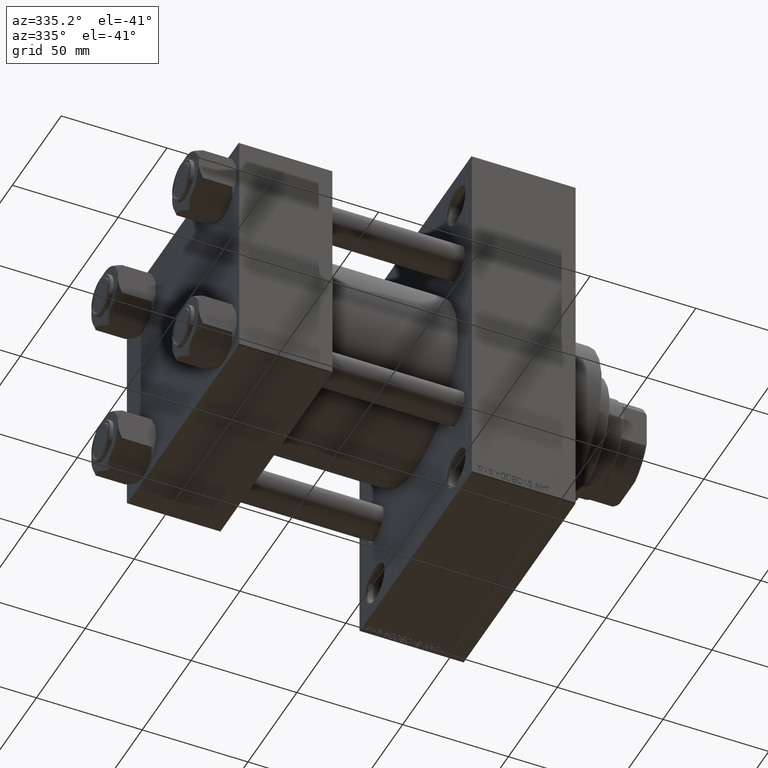
[diagram: clean part render]
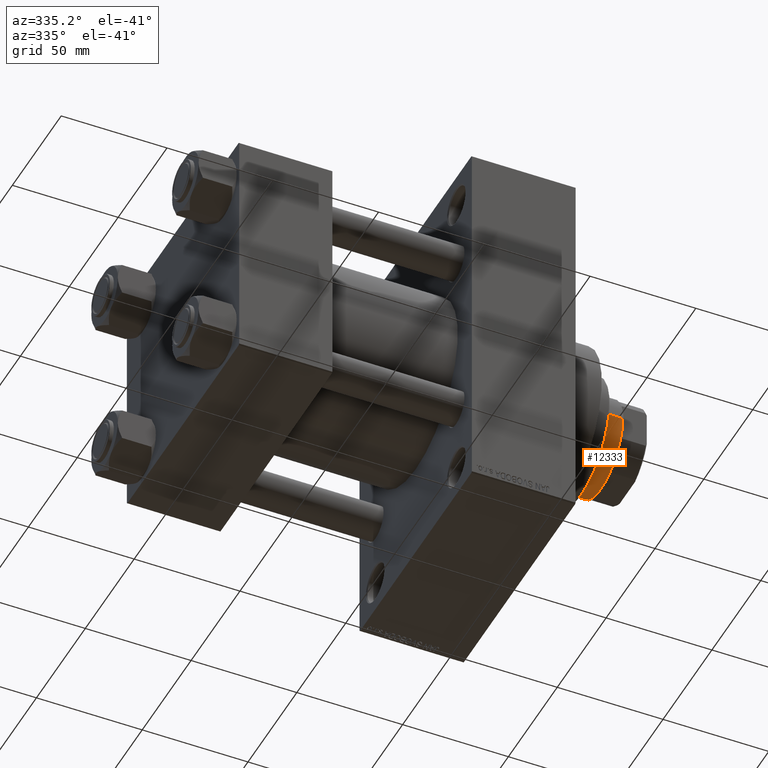
[diagram: same view with one face highlighted and labeled with its STEP entity id]
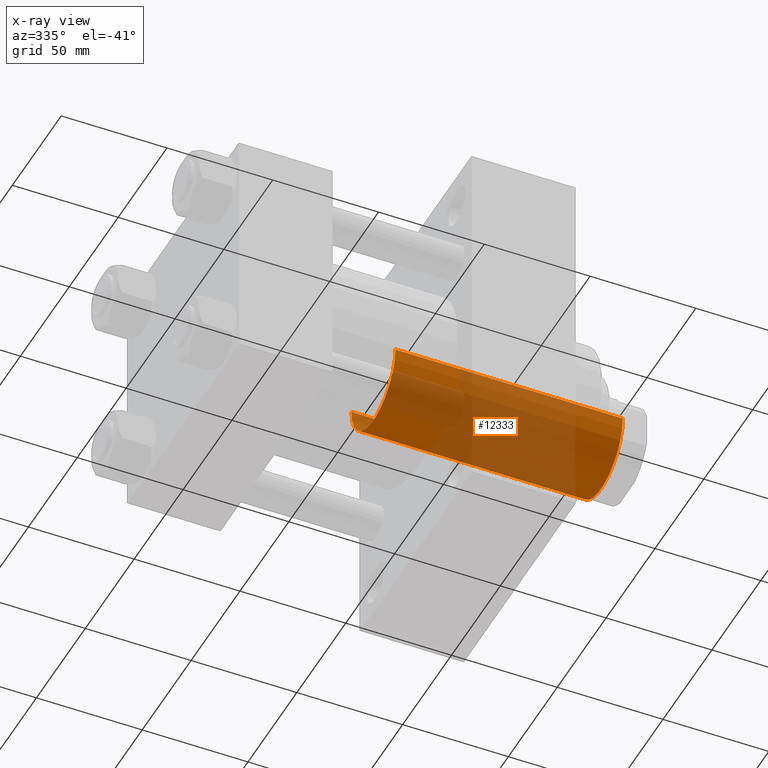
[diagram: x-ray of the same camera — body ghosted, the highlighted face saturated]
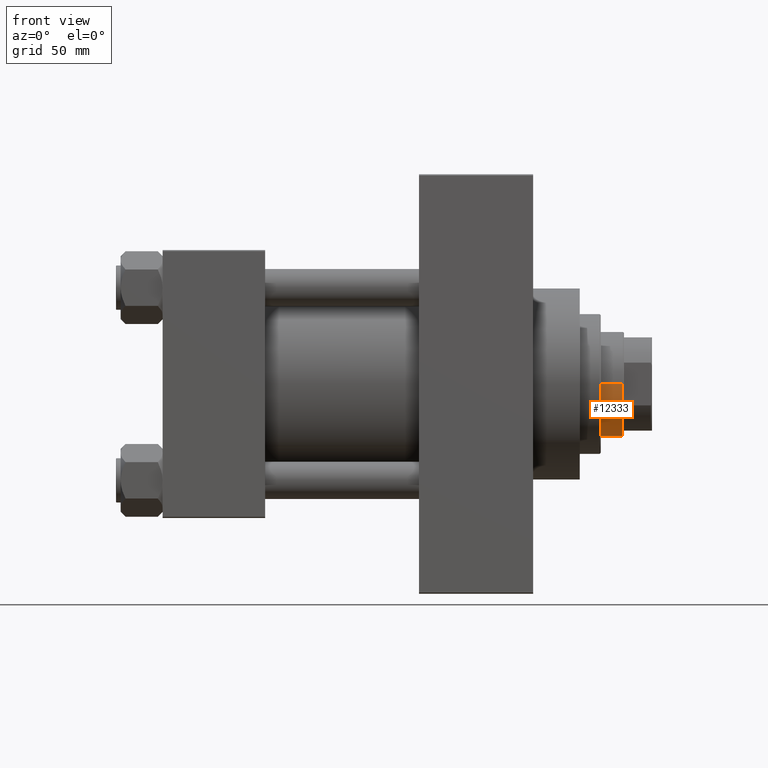
[diagram: same view with one face highlighted and labeled with its STEP entity id]
A machine part, auxiliary view. The second image highlights one B-rep face of the part: STEP entity #12333.
The next image is the same camera in x-ray: the body ghosted, the highlighted face saturated — about 68% of this face is hidden behind the body in this view.
A second angle (front view) of the same face is appended — the face is thin or edge-on in the first view.
In plain terms, the highlighted cylindrical surface (partial cylindrical patch) has radius 22.5 mm, axis along (-1, 0, 0).
Its self-contained STEP definition (entity closure, byte-faithful):
#849 = DIRECTION ( 'NONE',  ( -0.000000000000000000, -0.000000000000000000, -1.000000000000000000 ) ) ;
#1303 = ORIENTED_EDGE ( 'NONE', *, *, #11924, .F. ) ;
#1379 = EDGE_CURVE ( 'NONE', #17926, #16712, #19601, .T. ) ;
#3511 = LINE ( 'NONE', #44254, #44139 ) ;
#11444 = ORIENTED_EDGE ( 'NONE', *, *, #1379, .T. ) ;
#11904 = CYLINDRICAL_SURFACE ( 'NONE', #14419, 22.50000000000000355 ) ;
#11924 = EDGE_CURVE ( 'NONE', #41215, #16712, #18357, .T. ) ;
#11998 = DIRECTION ( 'NONE',  ( 1.000000000000000000, 0.000000000000000000, 0.000000000000000000 ) ) ;
#12142 = DIRECTION ( 'NONE',  ( -1.000000000000000000, 0.000000000000000000, 0.000000000000000000 ) ) ;
#12333 = ADVANCED_FACE ( 'NONE', ( #23008 ), #11904, .T. ) ;
#12432 = CIRCLE ( 'NONE', #46331, 22.50000000000000355 ) ;
#14419 = AXIS2_PLACEMENT_3D ( 'NONE', #33865, #26621, #12142 ) ;
#14491 = DIRECTION ( 'NONE',  ( 0.000000000000000000, 0.000000000000000000, -1.000000000000000000 ) ) ;
#14729 = DIRECTION ( 'NONE',  ( -0.000000000000000000, -0.000000000000000000, -1.000000000000000000 ) ) ;
#16313 = CARTESIAN_POINT ( 'NONE',  ( 0.000000000000000000, 0.000000000000000000, 46.00000000000000000 ) ) ;
#16712 = VERTEX_POINT ( 'NONE', #37708 ) ;
#17926 = VERTEX_POINT ( 'NONE', #24375 ) ;
#18032 = AXIS2_PLACEMENT_3D ( 'NONE', #16313, #34666, #11998 ) ;
#18357 = LINE ( 'NONE', #33074, #22865 ) ;
#19555 = VERTEX_POINT ( 'NONE', #45641 ) ;
#19601 = CIRCLE ( 'NONE', #18032, 22.50000000000000355 ) ;
#19670 = EDGE_CURVE ( 'NONE', #41215, #19555, #12432, .T. ) ;
#22690 = CARTESIAN_POINT ( 'NONE',  ( 0.000000000000000000, 0.000000000000000000, 153.5000000000000284 ) ) ;
#22865 = VECTOR ( 'NONE', #14729, 1000.000000000000000 ) ;
#23008 = FACE_OUTER_BOUND ( 'NONE', #25940, .T. ) ;
#24375 = CARTESIAN_POINT ( 'NONE',  ( 22.50000000000000355, 2.755455298081545172E-15, 46.00000000000000000 ) ) ;
#25940 = EDGE_LOOP ( 'NONE', ( #33657, #44038, #11444, #1303 ) ) ;
#26621 = DIRECTION ( 'NONE',  ( -0.000000000000000000, -0.000000000000000000, -1.000000000000000000 ) ) ;
#33074 = CARTESIAN_POINT ( 'NONE',  ( -22.50000000000000355, 0.000000000000000000, 154.0000000000000000 ) ) ;
#33657 = ORIENTED_EDGE ( 'NONE', *, *, #19670, .T. ) ;
#33865 = CARTESIAN_POINT ( 'NONE',  ( 0.000000000000000000, 0.000000000000000000, 154.0000000000000000 ) ) ;
#34655 = CARTESIAN_POINT ( 'NONE',  ( -22.50000000000000355, 0.000000000000000000, 153.5000000000000284 ) ) ;
#34666 = DIRECTION ( 'NONE',  ( 0.000000000000000000, 0.000000000000000000, 1.000000000000000000 ) ) ;
#37708 = CARTESIAN_POINT ( 'NONE',  ( -22.50000000000000355, 0.000000000000000000, 46.00000000000000000 ) ) ;
#41215 = VERTEX_POINT ( 'NONE', #34655 ) ;
#42697 = EDGE_CURVE ( 'NONE', #19555, #17926, #3511, .T. ) ;
#43901 = DIRECTION ( 'NONE',  ( 1.000000000000000000, 0.000000000000000000, 0.000000000000000000 ) ) ;
#44038 = ORIENTED_EDGE ( 'NONE', *, *, #42697, .T. ) ;
#44139 = VECTOR ( 'NONE', #849, 1000.000000000000000 ) ;
#44254 = CARTESIAN_POINT ( 'NONE',  ( 22.50000000000000355, 2.755455298081545172E-15, 154.0000000000000000 ) ) ;
#45641 = CARTESIAN_POINT ( 'NONE',  ( 22.50000000000000355, 2.755455298081545172E-15, 153.5000000000000284 ) ) ;
#46331 = AXIS2_PLACEMENT_3D ( 'NONE', #22690, #14491, #43901 ) ;